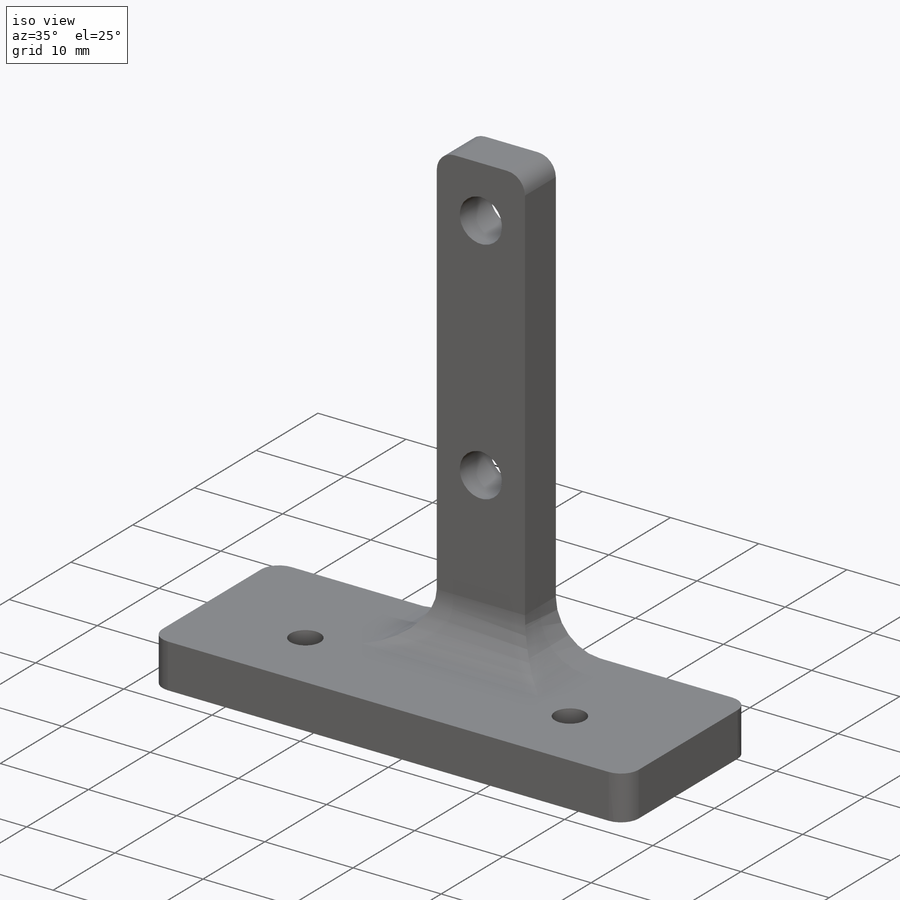
[diagram: iso view]
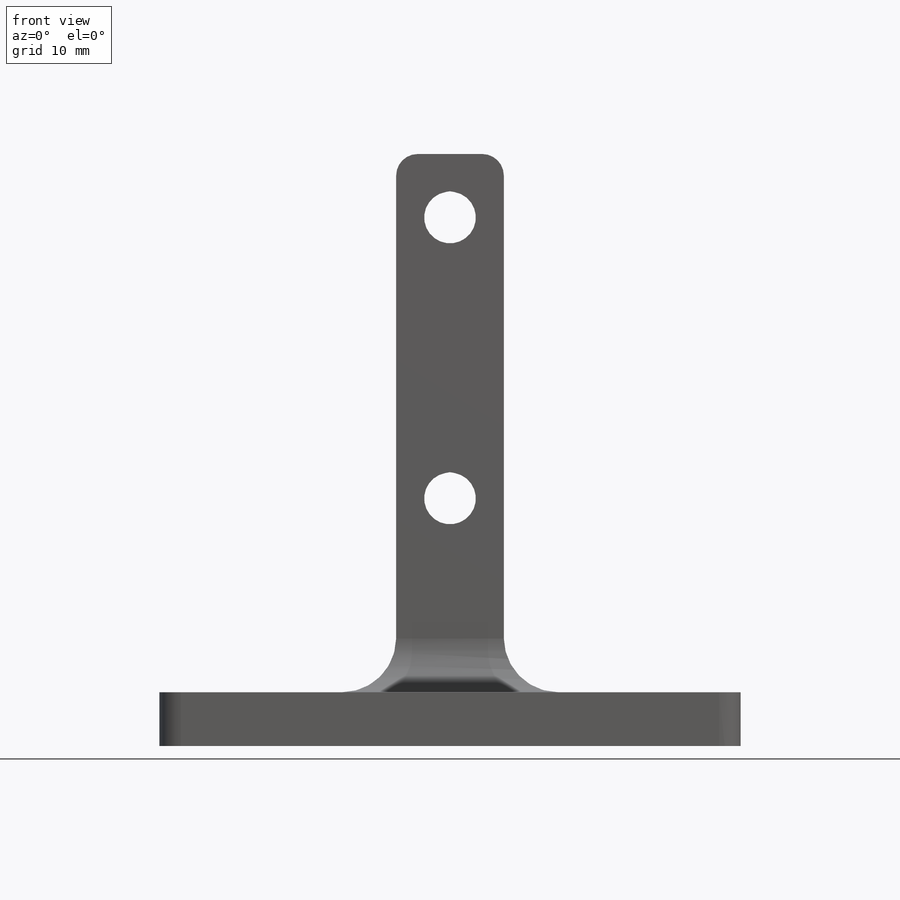
[diagram: front view]
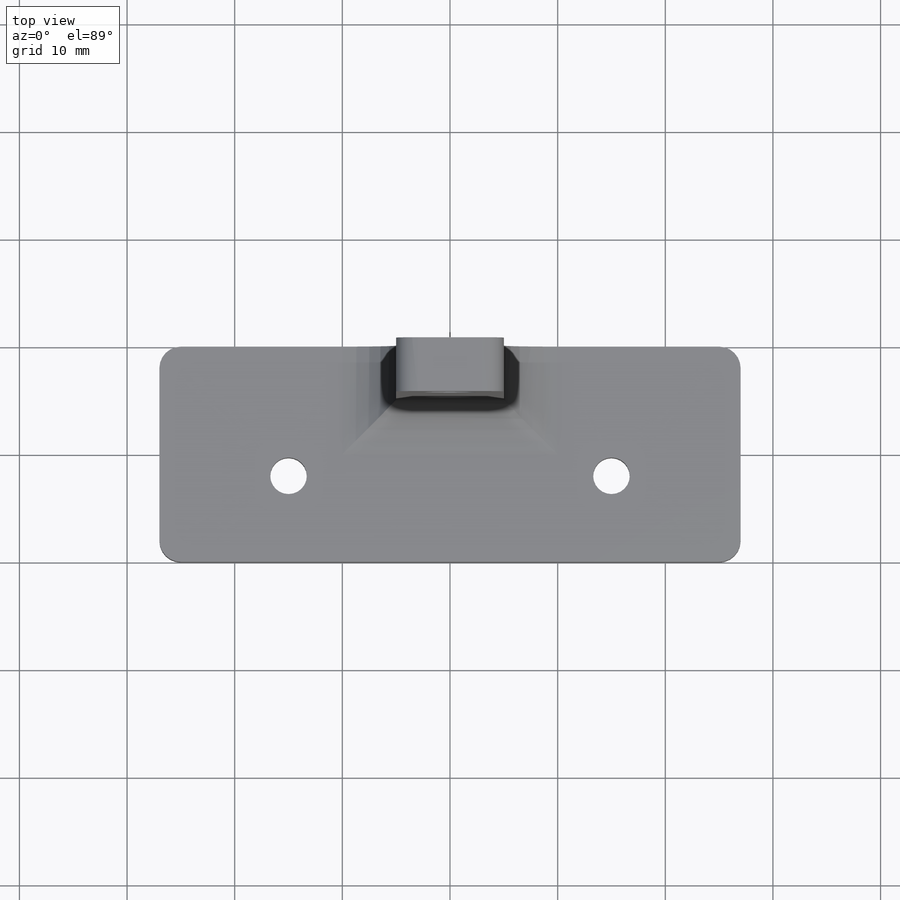
[diagram: top view]
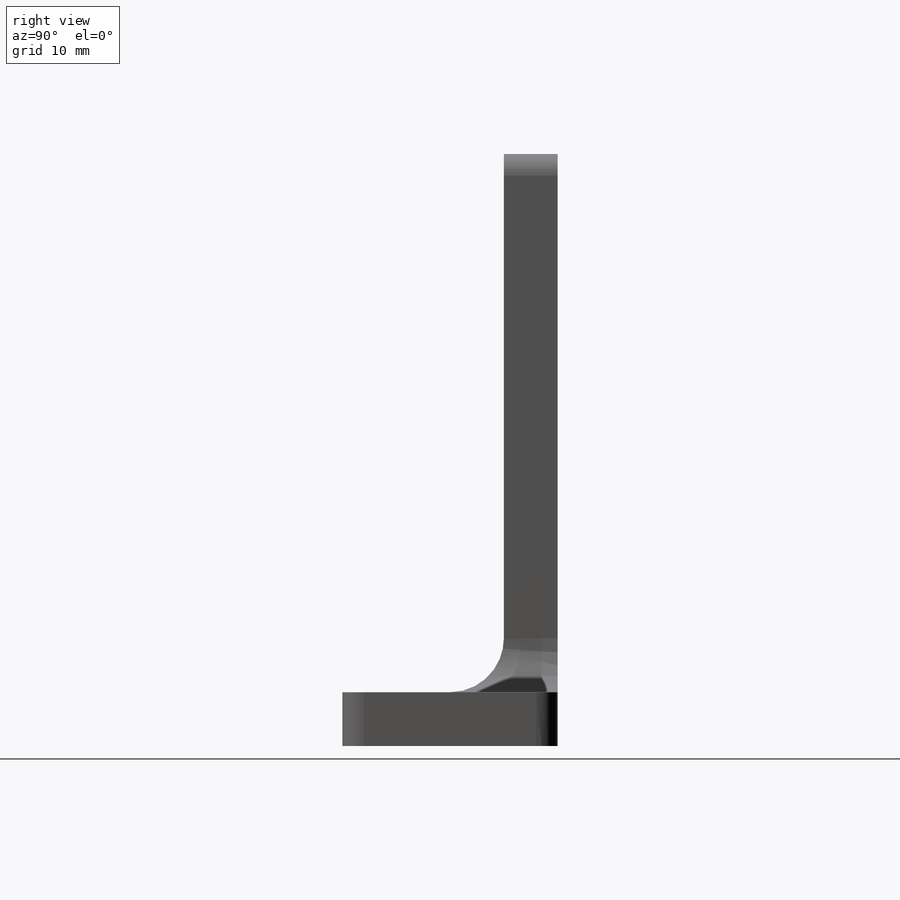
[diagram: right view]
SOLIDWORKS PART (.sldprt)
format: sldprt  version: not decoded by parser v0  size: 273,920 bytes
history: native  units: mm
features: sketch x6, extrude x2, fillet x2, cut_extrude x2, material x1, hole x1 + 1 further entry (+11 scaffold rows collapsed)
feature tree (26):
  scaffold x11  (default folders/planes/origin — collapsed)
  material  "Material <not specified>"
  "Annotations"  RD1=43mm RD2=43mm RD3=10mm
  sketch  "Sketch1"  dims[D1=54.0mm D2=20.0mm]
  extrude  "Boss-Extrude1"  Depth=5mm
  sketch  "Sketch2"  dims[D1=5.0mm D2=15.0mm]
  extrude  "Boss-Extrude2"  Depth=50mm
  hole  "M3 Clearance Hole2"  Diameter=3.4mm Depth=5mm
  sketch  "Sketch8"  dims[D1=8.0mm D2=8.0mm D3=30.0mm D4=12.0mm]
  sketch  "Sketch7"  dims[hole-wizard template sketch: 61 standard entries collapsed; hole parameters above]
  fillet  "Fillet1"  Radius=2mm
  sketch  "Sketch16"  dims[c1.D1=4.8mm c1.D2=~3.802289mm c2.D2=10.0deg c2.D3=~3.802289mm c3.D3=10.0deg]
  cut_extrude  "Cut-Extrude6"  Depth=13mm
  sketch  "Sketch17"  dims[c1.D1=18.0mm c1.D2=~18.681542mm c2.D1=~41.700832mm c2.D2=~4.827332mm c3.D2=10.0deg c3.D3=~1.353583mm c4.D3=10.0deg]
  cut_extrude  "Cut-Extrude8"  Depth=13mm
  fillet  "Fillet3"  Radius=5mm
decode coverage: 13 of 13 modeling features carry decoded parameters; 1 rows unclassified (native names shown)
note: ~ marks probable driven/reference dimensions
note: suppression state not decoded; provenance and decode notes live in map.json
